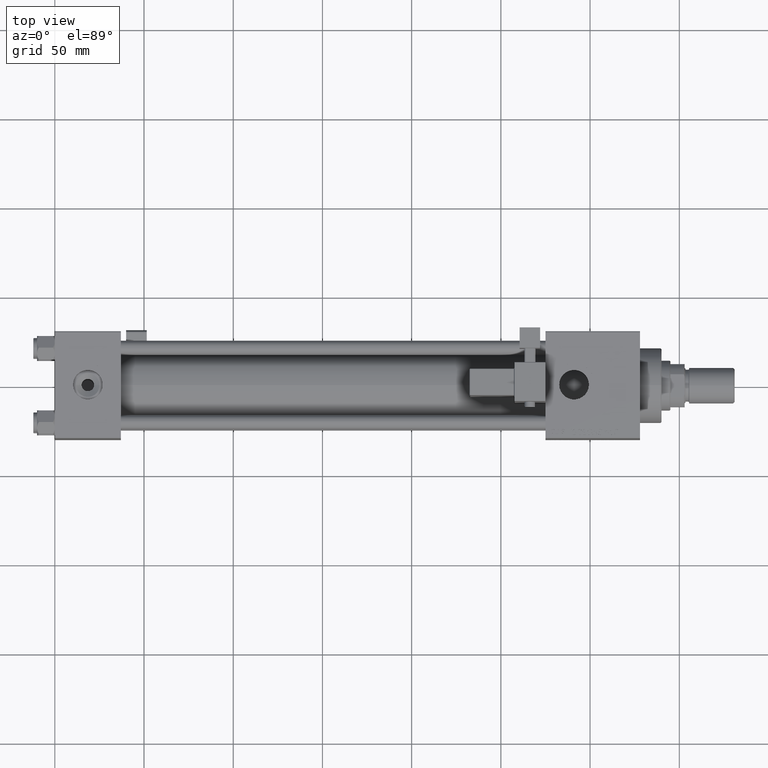
[diagram: clean part render]
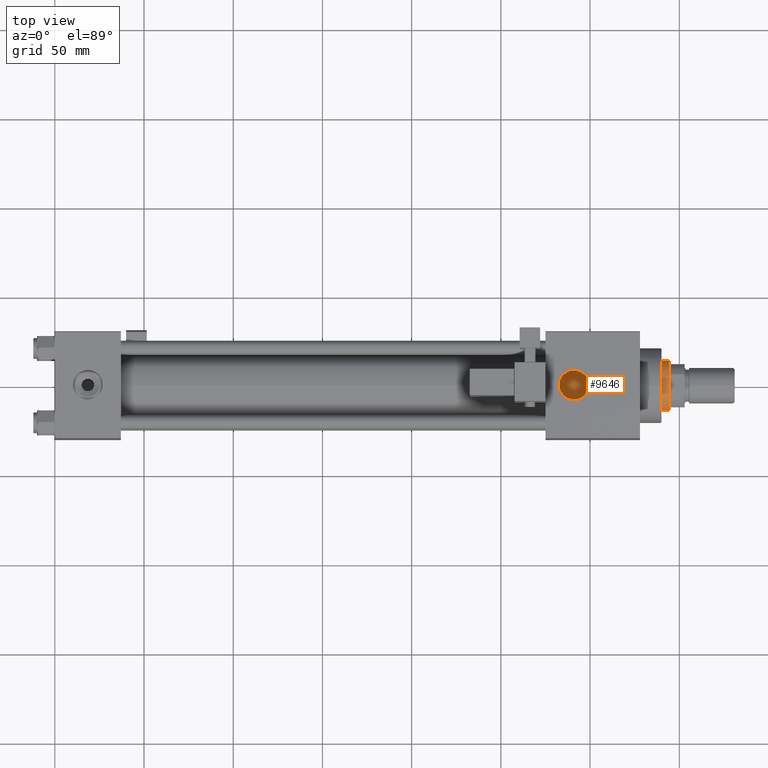
[diagram: same view with one face highlighted and labeled with its STEP entity id]
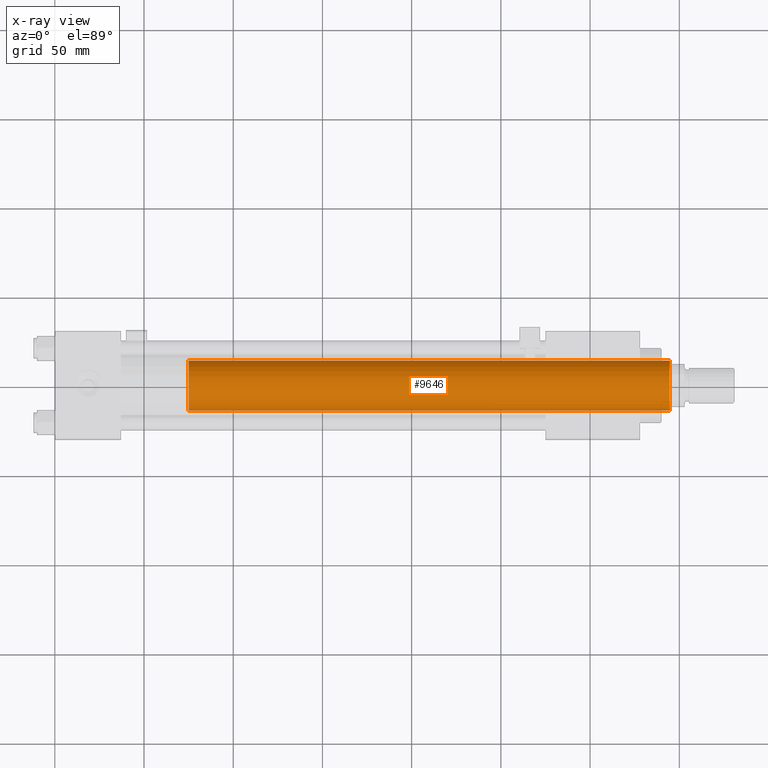
[diagram: x-ray of the same camera — body ghosted, the highlighted face saturated]
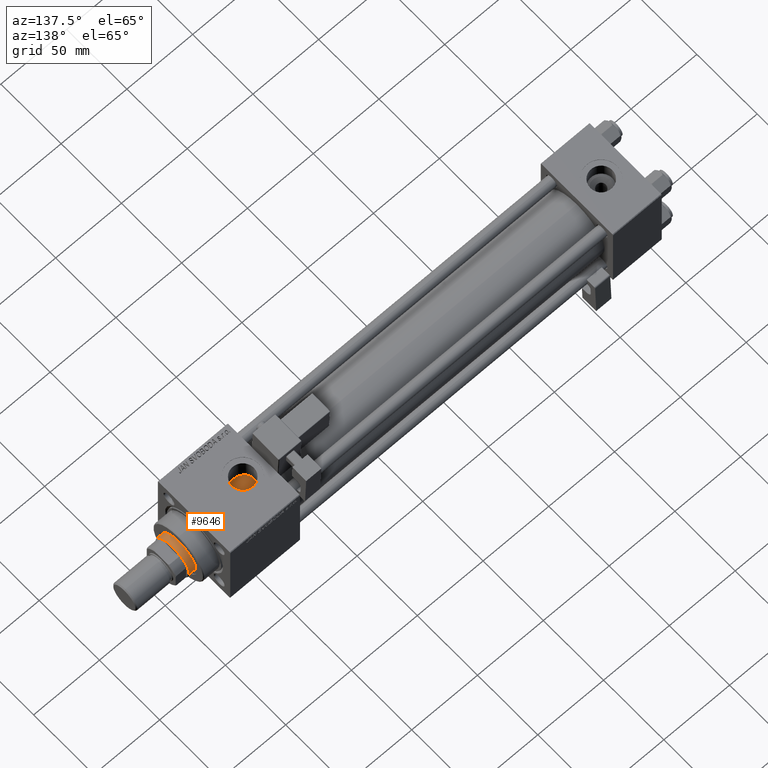
[diagram: same view with one face highlighted and labeled with its STEP entity id]
A machine part, top view. The second image highlights one B-rep face of the part: STEP entity #9646.
The next image is the same camera in x-ray: the body ghosted, the highlighted face saturated — about 0% of this face is hidden behind the body in this view.
A second angle (auxiliary view) of the same face is appended — the face is thin or edge-on in the first view.
In plain terms, the highlighted cylindrical surface (edge-blend (fillet) strip) has radius 14 mm, axis along (-1, 0, 0).
Its self-contained STEP definition (entity closure, byte-faithful):
#440 = LINE ( 'NONE', #17380, #17102 ) ;
#839 = CIRCLE ( 'NONE', #36366, 14.00000000000000178 ) ;
#1188 = CARTESIAN_POINT ( 'NONE',  ( -14.00000000000000178, 0.000000000000000000, 307.5000000000001137 ) ) ;
#3499 = ORIENTED_EDGE ( 'NONE', *, *, #18029, .T. ) ;
#5411 = CARTESIAN_POINT ( 'NONE',  ( 0.000000000000000000, 0.000000000000000000, 307.5000000000001137 ) ) ;
#5650 = AXIS2_PLACEMENT_3D ( 'NONE', #8290, #21608, #29686 ) ;
#7414 = VERTEX_POINT ( 'NONE', #33266 ) ;
#8290 = CARTESIAN_POINT ( 'NONE',  ( 0.000000000000000000, 0.000000000000000000, 38.00000000000000000 ) ) ;
#9646 = ADVANCED_FACE ( 'NONE', ( #32049 ), #40632, .T. ) ;
#11028 = VECTOR ( 'NONE', #45605, 1000.000000000000000 ) ;
#13725 = VERTEX_POINT ( 'NONE', #27088 ) ;
#16056 = EDGE_CURVE ( 'NONE', #13725, #7414, #440, .T. ) ;
#16981 = AXIS2_PLACEMENT_3D ( 'NONE', #35651, #19528, #36474 ) ;
#17102 = VECTOR ( 'NONE', #41585, 1000.000000000000000 ) ;
#17239 = ORIENTED_EDGE ( 'NONE', *, *, #16056, .F. ) ;
#17344 = ORIENTED_EDGE ( 'NONE', *, *, #39589, .T. ) ;
#17380 = CARTESIAN_POINT ( 'NONE',  ( 14.00000000000000178, 1.714505518806294835E-15, 308.0000000000000000 ) ) ;
#18029 = EDGE_CURVE ( 'NONE', #28727, #7414, #26958, .T. ) ;
#19528 = DIRECTION ( 'NONE',  ( -0.000000000000000000, -0.000000000000000000, -1.000000000000000000 ) ) ;
#20881 = LINE ( 'NONE', #24788, #11028 ) ;
#21462 = ORIENTED_EDGE ( 'NONE', *, *, #33977, .T. ) ;
#21608 = DIRECTION ( 'NONE',  ( 0.000000000000000000, 0.000000000000000000, 1.000000000000000000 ) ) ;
#23754 = VERTEX_POINT ( 'NONE', #1188 ) ;
#24788 = CARTESIAN_POINT ( 'NONE',  ( -14.00000000000000178, 0.000000000000000000, 308.0000000000000000 ) ) ;
#25486 = EDGE_LOOP ( 'NONE', ( #17239, #21462, #17344, #3499 ) ) ;
#26958 = CIRCLE ( 'NONE', #5650, 14.00000000000000178 ) ;
#27079 = DIRECTION ( 'NONE',  ( 0.000000000000000000, 0.000000000000000000, -1.000000000000000000 ) ) ;
#27088 = CARTESIAN_POINT ( 'NONE',  ( 14.00000000000000178, 1.714505518806294835E-15, 307.5000000000001137 ) ) ;
#28727 = VERTEX_POINT ( 'NONE', #33476 ) ;
#29686 = DIRECTION ( 'NONE',  ( 1.000000000000000000, 0.000000000000000000, 0.000000000000000000 ) ) ;
#32049 = FACE_OUTER_BOUND ( 'NONE', #25486, .T. ) ;
#33266 = CARTESIAN_POINT ( 'NONE',  ( 14.00000000000000178, 1.714505518806294835E-15, 38.00000000000000000 ) ) ;
#33476 = CARTESIAN_POINT ( 'NONE',  ( -14.00000000000000178, 0.000000000000000000, 38.00000000000000000 ) ) ;
#33977 = EDGE_CURVE ( 'NONE', #13725, #23754, #839, .T. ) ;
#35651 = CARTESIAN_POINT ( 'NONE',  ( 0.000000000000000000, 0.000000000000000000, 308.0000000000000000 ) ) ;
#36366 = AXIS2_PLACEMENT_3D ( 'NONE', #5411, #27079, #48427 ) ;
#36474 = DIRECTION ( 'NONE',  ( -1.000000000000000000, 0.000000000000000000, 0.000000000000000000 ) ) ;
#39589 = EDGE_CURVE ( 'NONE', #23754, #28727, #20881, .T. ) ;
#40632 = CYLINDRICAL_SURFACE ( 'NONE', #16981, 14.00000000000000178 ) ;
#41585 = DIRECTION ( 'NONE',  ( -0.000000000000000000, -0.000000000000000000, -1.000000000000000000 ) ) ;
#45605 = DIRECTION ( 'NONE',  ( -0.000000000000000000, -0.000000000000000000, -1.000000000000000000 ) ) ;
#48427 = DIRECTION ( 'NONE',  ( 1.000000000000000000, 0.000000000000000000, 0.000000000000000000 ) ) ;